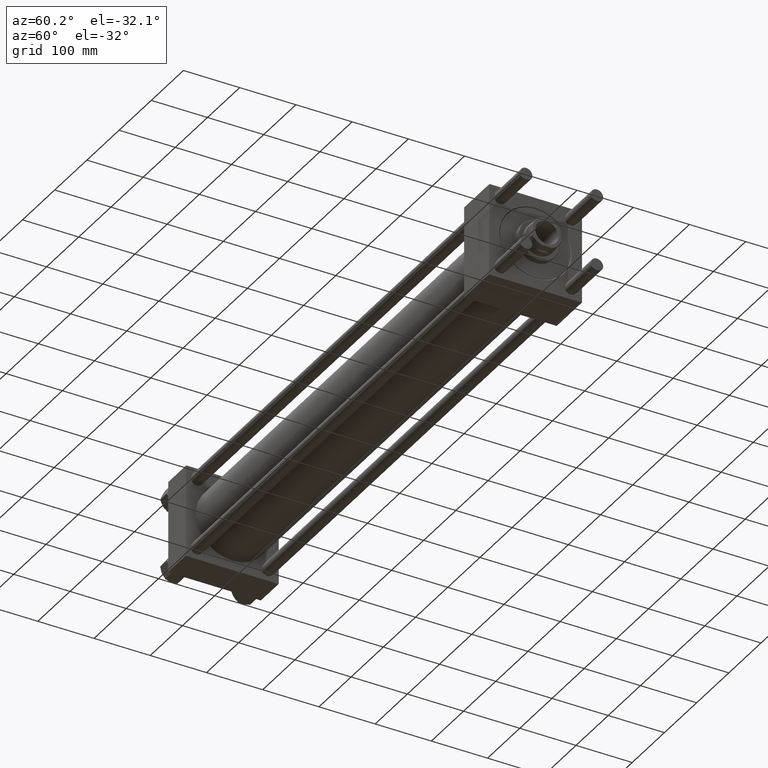
[diagram: clean part render]
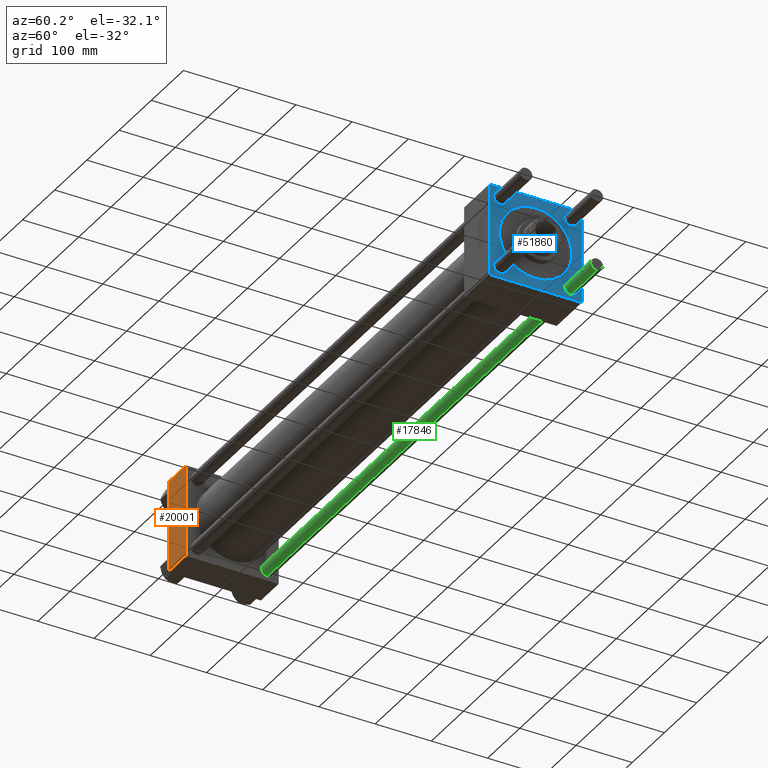
[diagram: same view with three faces highlighted in distinct colors, each labeled with its STEP entity id]
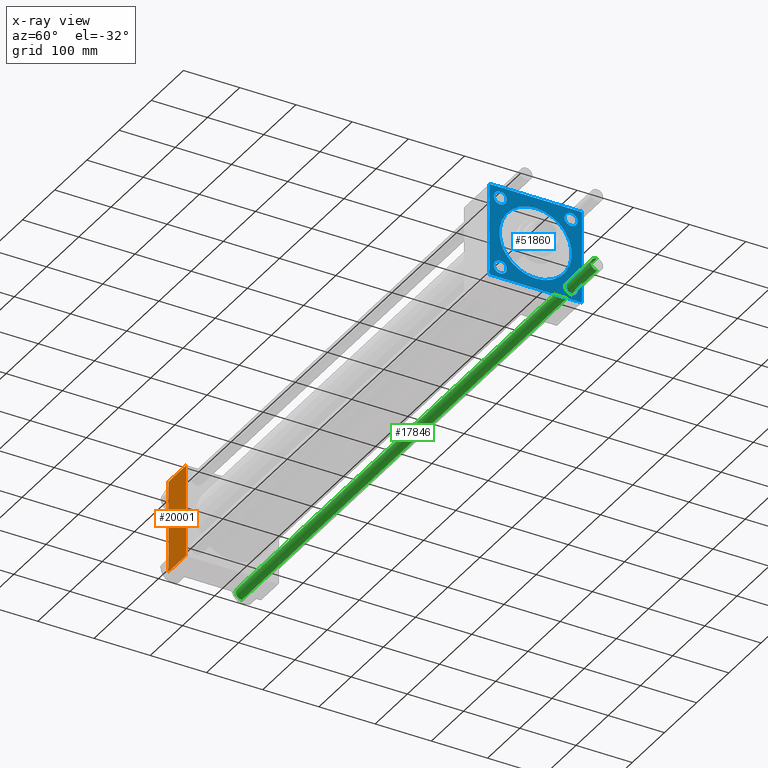
[diagram: x-ray of the same camera — body ghosted, the three highlighted faces saturated]
A machine part, auxiliary view with three faces highlighted in distinct colors.
The next image is the same camera in x-ray (body ghosted, the three faces saturated) — at least one of them is partly hidden behind the body in this view.
Their STEP definitions:

[orange] entity #20001 — the highlighted planar face has unit normal (0, 1, -0).
#1960 = DIRECTION ( 'NONE',  ( 1.000000000000000000, 0.000000000000000000, 0.000000000000000000 ) ) ;
#4855 = VERTEX_POINT ( 'NONE', #13867 ) ;
#5916 = VECTOR ( 'NONE', #13389, 1000.000000000000000 ) ;
#7562 = CARTESIAN_POINT ( 'NONE',  ( 55.00000000000000000, -82.49999999999997158, 82.00000000000001421 ) ) ;
#8442 = EDGE_LOOP ( 'NONE', ( #31862, #13819, #42163, #32578 ) ) ;
#9592 = CARTESIAN_POINT ( 'NONE',  ( 0.000000000000000000, -82.49999999999997158, 82.50000000000001421 ) ) ;
#10832 = VERTEX_POINT ( 'NONE', #33979 ) ;
#13389 = DIRECTION ( 'NONE',  ( 0.000000000000000000, -1.682156097916903588E-16, -1.000000000000000000 ) ) ;
#13819 = ORIENTED_EDGE ( 'NONE', *, *, #26184, .T. ) ;
#13867 = CARTESIAN_POINT ( 'NONE',  ( 0.000000000000000000, -82.50000000000000000, -81.99999999999998579 ) ) ;
#14753 = VERTEX_POINT ( 'NONE', #21691 ) ;
#20001 = ADVANCED_FACE ( 'NONE', ( #33503 ), #51150, .F. ) ;
#20867 = DIRECTION ( 'NONE',  ( -1.000000000000000000, 0.000000000000000000, 0.000000000000000000 ) ) ;
#21691 = CARTESIAN_POINT ( 'NONE',  ( 55.00000000000000000, -82.49999999999997158, 82.00000000000001421 ) ) ;
#23104 = CARTESIAN_POINT ( 'NONE',  ( 55.00000000000000000, -82.50000000000000000, -81.99999999999998579 ) ) ;
#23954 = AXIS2_PLACEMENT_3D ( 'NONE', #47096, #25095, #42466 ) ;
#25095 = DIRECTION ( 'NONE',  ( 0.000000000000000000, 1.000000000000000000, -1.682156097916903588E-16 ) ) ;
#26184 = EDGE_CURVE ( 'NONE', #4855, #35829, #32373, .T. ) ;
#27197 = VECTOR ( 'NONE', #20867, 1000.000000000000000 ) ;
#27816 = VECTOR ( 'NONE', #1960, 1000.000000000000000 ) ;
#31862 = ORIENTED_EDGE ( 'NONE', *, *, #35668, .T. ) ;
#31875 = VECTOR ( 'NONE', #49584, 1000.000000000000000 ) ;
#32231 = CARTESIAN_POINT ( 'NONE',  ( 55.00000000000000000, -82.49999999999997158, 82.50000000000001421 ) ) ;
#32373 = LINE ( 'NONE', #23104, #27816 ) ;
#32578 = ORIENTED_EDGE ( 'NONE', *, *, #41665, .T. ) ;
#33503 = FACE_OUTER_BOUND ( 'NONE', #8442, .T. ) ;
#33979 = CARTESIAN_POINT ( 'NONE',  ( 0.000000000000000000, -82.49999999999997158, 82.00000000000001421 ) ) ;
#35668 = EDGE_CURVE ( 'NONE', #10832, #4855, #49260, .T. ) ;
#35829 = VERTEX_POINT ( 'NONE', #55877 ) ;
#41665 = EDGE_CURVE ( 'NONE', #14753, #10832, #51567, .T. ) ;
#42163 = ORIENTED_EDGE ( 'NONE', *, *, #43733, .F. ) ;
#42466 = DIRECTION ( 'NONE',  ( 0.000000000000000000, 1.682156097916903588E-16, 1.000000000000000000 ) ) ;
#43733 = EDGE_CURVE ( 'NONE', #14753, #35829, #44952, .T. ) ;
#44952 = LINE ( 'NONE', #32231, #31875 ) ;
#47096 = CARTESIAN_POINT ( 'NONE',  ( 55.00000000000000000, -82.49999999999997158, 82.50000000000001421 ) ) ;
#49260 = LINE ( 'NONE', #9592, #5916 ) ;
#49584 = DIRECTION ( 'NONE',  ( 0.000000000000000000, -1.682156097916903588E-16, -1.000000000000000000 ) ) ;
#51150 = PLANE ( 'NONE',  #23954 ) ;
#51567 = LINE ( 'NONE', #7562, #27197 ) ;
#55877 = CARTESIAN_POINT ( 'NONE',  ( 55.00000000000000000, -82.50000000000000000, -81.99999999999998579 ) ) ;

[blue] entity #51860 — the highlighted planar face has unit normal (-1, 0, 0).
#28 = ORIENTED_EDGE ( 'NONE', *, *, #54847, .T. ) ;
#296 = ORIENTED_EDGE ( 'NONE', *, *, #46406, .T. ) ;
#546 = EDGE_CURVE ( 'NONE', #15618, #23925, #17947, .T. ) ;
#549 = CARTESIAN_POINT ( 'NONE',  ( 997.0000000000000000, 0.000000000000000000, -64.25000000000036948 ) ) ;
#681 = EDGE_CURVE ( 'NONE', #3458, #35524, #6850, .T. ) ;
#957 = ORIENTED_EDGE ( 'NONE', *, *, #7726, .T. ) ;
#1243 = VERTEX_POINT ( 'NONE', #549 ) ;
#2039 = EDGE_CURVE ( 'NONE', #39489, #53422, #8329, .T. ) ;
#2057 = DIRECTION ( 'NONE',  ( 0.000000000000000000, 0.000000000000000000, 1.000000000000000000 ) ) ;
#2219 = EDGE_LOOP ( 'NONE', ( #24630, #28721 ) ) ;
#2564 = CARTESIAN_POINT ( 'NONE',  ( 997.0000000000000000, -82.00000000000015632, -82.50000000000002842 ) ) ;
#2662 = DIRECTION ( 'NONE',  ( 0.000000000000000000, 0.000000000000000000, 1.000000000000000000 ) ) ;
#2807 = ORIENTED_EDGE ( 'NONE', *, *, #54905, .F. ) ;
#3228 = CARTESIAN_POINT ( 'NONE',  ( 997.0000000000000000, 0.000000000000000000, 0.000000000000000000 ) ) ;
#3458 = VERTEX_POINT ( 'NONE', #21427 ) ;
#3476 = AXIS2_PLACEMENT_3D ( 'NONE', #38958, #56592, #38093 ) ;
#4945 = CARTESIAN_POINT ( 'NONE',  ( 997.0000000000000000, 81.99999999999995737, 82.50000000000000000 ) ) ;
#6495 = ORIENTED_EDGE ( 'NONE', *, *, #8574, .T. ) ;
#6850 = CIRCLE ( 'NONE', #50289, 11.50000000000028777 ) ;
#6851 = CARTESIAN_POINT ( 'NONE',  ( 997.0000000000000000, -82.49999999999997158, 81.99999999999991473 ) ) ;
#7157 = DIRECTION ( 'NONE',  ( -1.000000000000000000, -0.000000000000000000, 0.000000000000000000 ) ) ;
#7726 = EDGE_CURVE ( 'NONE', #31529, #30227, #55201, .T. ) ;
#7811 = VECTOR ( 'NONE', #43634, 1000.000000000000114 ) ;
#8153 = ORIENTED_EDGE ( 'NONE', *, *, #38608, .T. ) ;
#8250 = VERTEX_POINT ( 'NONE', #56286 ) ;
#8329 = LINE ( 'NONE', #30342, #7811 ) ;
#8574 = EDGE_CURVE ( 'NONE', #23925, #15618, #30268, .T. ) ;
#8809 = DIRECTION ( 'NONE',  ( -1.000000000000000000, -0.000000000000000000, 0.000000000000000000 ) ) ;
#8876 = LINE ( 'NONE', #48827, #17091 ) ;
#8923 = VECTOR ( 'NONE', #19599, 1000.000000000000114 ) ;
#9073 = VERTEX_POINT ( 'NONE', #48475 ) ;
#9912 = ORIENTED_EDGE ( 'NONE', *, *, #2039, .T. ) ;
#9976 = EDGE_CURVE ( 'NONE', #41313, #16746, #19941, .T. ) ;
#11188 = EDGE_LOOP ( 'NONE', ( #31982, #6495 ) ) ;
#11478 = AXIS2_PLACEMENT_3D ( 'NONE', #17638, #21399, #48045 ) ;
#11492 = CARTESIAN_POINT ( 'NONE',  ( 997.0000000000000000, -62.94999999999998153, -62.95000000000001705 ) ) ;
#11799 = EDGE_CURVE ( 'NONE', #35524, #3458, #23712, .T. ) ;
#11879 = PLANE ( 'NONE',  #34918 ) ;
#11980 = CIRCLE ( 'NONE', #56354, 11.50000000000028777 ) ;
#12096 = VECTOR ( 'NONE', #47429, 1000.000000000000000 ) ;
#13123 = DIRECTION ( 'NONE',  ( 0.000000000000000000, 0.000000000000000000, 1.000000000000000000 ) ) ;
#13681 = DIRECTION ( 'NONE',  ( -1.000000000000000000, -0.000000000000000000, 0.000000000000000000 ) ) ;
#15132 = CARTESIAN_POINT ( 'NONE',  ( 997.0000000000000000, -62.94999999999998153, 62.95000000000001705 ) ) ;
#15242 = EDGE_CURVE ( 'NONE', #1243, #31638, #28438, .T. ) ;
#15618 = VERTEX_POINT ( 'NONE', #31818 ) ;
#15634 = DIRECTION ( 'NONE',  ( 0.000000000000000000, 0.000000000000000000, 1.000000000000000000 ) ) ;
#15685 = DIRECTION ( 'NONE',  ( -1.000000000000000000, -0.000000000000000000, 0.000000000000000000 ) ) ;
#15891 = EDGE_CURVE ( 'NONE', #8250, #53422, #46092, .T. ) ;
#15960 = EDGE_LOOP ( 'NONE', ( #51282, #16631, #2807, #9912, #28462, #8153, #42615, #957 ) ) ;
#16510 = FACE_OUTER_BOUND ( 'NONE', #15960, .T. ) ;
#16552 = CARTESIAN_POINT ( 'NONE',  ( 997.0000000000000000, 82.50000000000001421, 82.50000000000000000 ) ) ;
#16631 = ORIENTED_EDGE ( 'NONE', *, *, #55825, .T. ) ;
#16746 = VERTEX_POINT ( 'NONE', #53650 ) ;
#17091 = VECTOR ( 'NONE', #17583, 1000.000000000000114 ) ;
#17280 = AXIS2_PLACEMENT_3D ( 'NONE', #15132, #32809, #54215 ) ;
#17583 = DIRECTION ( 'NONE',  ( 0.000000000000000000, -0.7071067811865474617, 0.7071067811865474617 ) ) ;
#17638 = CARTESIAN_POINT ( 'NONE',  ( 997.0000000000000000, -62.94999999999998153, 62.95000000000001705 ) ) ;
#17947 = CIRCLE ( 'NONE', #11478, 11.50000000000028777 ) ;
#19330 = DIRECTION ( 'NONE',  ( 0.000000000000000000, 0.000000000000000000, 1.000000000000000000 ) ) ;
#19394 = ORIENTED_EDGE ( 'NONE', *, *, #21454, .T. ) ;
#19478 = VERTEX_POINT ( 'NONE', #4945 ) ;
#19485 = CARTESIAN_POINT ( 'NONE',  ( 997.0000000000000000, 82.50000000000001421, -82.50000000000002842 ) ) ;
#19599 = DIRECTION ( 'NONE',  ( -0.000000000000000000, -0.7071067811865573427, -0.7071067811865376918 ) ) ;
#19941 = CIRCLE ( 'NONE', #27486, 11.50000000000028777 ) ;
#20949 = VERTEX_POINT ( 'NONE', #46148 ) ;
#21399 = DIRECTION ( 'NONE',  ( -1.000000000000000000, -0.000000000000000000, 0.000000000000000000 ) ) ;
#21427 = CARTESIAN_POINT ( 'NONE',  ( 997.0000000000000000, -62.94999999999998153, -51.44999999999973284 ) ) ;
#21454 = EDGE_CURVE ( 'NONE', #20949, #54356, #11980, .T. ) ;
#22253 = CARTESIAN_POINT ( 'NONE',  ( 997.0000000000000000, 82.50000000000001421, -81.99999999999997158 ) ) ;
#22414 = DIRECTION ( 'NONE',  ( 0.000000000000000000, 0.000000000000000000, 1.000000000000000000 ) ) ;
#23712 = CIRCLE ( 'NONE', #55113, 11.50000000000028777 ) ;
#23716 = DIRECTION ( 'NONE',  ( 0.000000000000000000, 0.000000000000000000, 1.000000000000000000 ) ) ;
#23925 = VERTEX_POINT ( 'NONE', #30615 ) ;
#24630 = ORIENTED_EDGE ( 'NONE', *, *, #41253, .T. ) ;
#24797 = VECTOR ( 'NONE', #28186, 1000.000000000000000 ) ;
#24888 = DIRECTION ( 'NONE',  ( -1.000000000000000000, -0.000000000000000000, 0.000000000000000000 ) ) ;
#25190 = DIRECTION ( 'NONE',  ( -1.000000000000000000, -0.000000000000000000, 0.000000000000000000 ) ) ;
#26294 = LINE ( 'NONE', #42796, #12096 ) ;
#26827 = CARTESIAN_POINT ( 'NONE',  ( 997.0000000000000000, 62.95000000000000284, 51.44999999999971863 ) ) ;
#27486 = AXIS2_PLACEMENT_3D ( 'NONE', #40361, #31674, #22414 ) ;
#28186 = DIRECTION ( 'NONE',  ( 0.000000000000000000, -1.000000000000000000, 0.000000000000000000 ) ) ;
#28438 = CIRCLE ( 'NONE', #3476, 64.25000000000036948 ) ;
#28462 = ORIENTED_EDGE ( 'NONE', *, *, #15891, .F. ) ;
#28721 = ORIENTED_EDGE ( 'NONE', *, *, #9976, .T. ) ;
#28974 = FACE_BOUND ( 'NONE', #2219, .T. ) ;
#29434 = EDGE_LOOP ( 'NONE', ( #28, #19394 ) ) ;
#29564 = EDGE_CURVE ( 'NONE', #30227, #31008, #26294, .T. ) ;
#30155 = ORIENTED_EDGE ( 'NONE', *, *, #11799, .T. ) ;
#30227 = VERTEX_POINT ( 'NONE', #33565 ) ;
#30268 = CIRCLE ( 'NONE', #17280, 11.50000000000028777 ) ;
#30342 = CARTESIAN_POINT ( 'NONE',  ( 997.0000000000000000, 82.50000000000001421, -81.99999999999997158 ) ) ;
#30550 = EDGE_LOOP ( 'NONE', ( #30155, #33138 ) ) ;
#30615 = CARTESIAN_POINT ( 'NONE',  ( 997.0000000000000000, -62.94999999999998153, 74.45000000000030127 ) ) ;
#30638 = CARTESIAN_POINT ( 'NONE',  ( 997.0000000000000000, 81.99999999999995737, -82.50000000000002842 ) ) ;
#30900 = CIRCLE ( 'NONE', #31788, 11.50000000000028777 ) ;
#31008 = VERTEX_POINT ( 'NONE', #49224 ) ;
#31304 = AXIS2_PLACEMENT_3D ( 'NONE', #48476, #8809, #55081 ) ;
#31529 = VERTEX_POINT ( 'NONE', #51839 ) ;
#31638 = VERTEX_POINT ( 'NONE', #55802 ) ;
#31674 = DIRECTION ( 'NONE',  ( -1.000000000000000000, -0.000000000000000000, 0.000000000000000000 ) ) ;
#31788 = AXIS2_PLACEMENT_3D ( 'NONE', #50347, #41089, #23716 ) ;
#31818 = CARTESIAN_POINT ( 'NONE',  ( 997.0000000000000000, -62.94999999999998153, 51.44999999999973284 ) ) ;
#31982 = ORIENTED_EDGE ( 'NONE', *, *, #546, .T. ) ;
#32809 = DIRECTION ( 'NONE',  ( -1.000000000000000000, -0.000000000000000000, 0.000000000000000000 ) ) ;
#32975 = LINE ( 'NONE', #2564, #39659 ) ;
#33138 = ORIENTED_EDGE ( 'NONE', *, *, #681, .T. ) ;
#33565 = CARTESIAN_POINT ( 'NONE',  ( 997.0000000000000000, -82.49999999999997158, 81.99999999999991473 ) ) ;
#33600 = FACE_BOUND ( 'NONE', #30550, .T. ) ;
#34918 = AXIS2_PLACEMENT_3D ( 'NONE', #51252, #25190, #2057 ) ;
#35524 = VERTEX_POINT ( 'NONE', #48561 ) ;
#35922 = CIRCLE ( 'NONE', #31304, 11.50000000000028777 ) ;
#37330 = LINE ( 'NONE', #54977, #49511 ) ;
#37489 = CIRCLE ( 'NONE', #42114, 64.25000000000036948 ) ;
#37944 = FACE_BOUND ( 'NONE', #47448, .T. ) ;
#38093 = DIRECTION ( 'NONE',  ( 0.000000000000000000, 0.000000000000000000, 1.000000000000000000 ) ) ;
#38608 = EDGE_CURVE ( 'NONE', #8250, #19478, #8876, .T. ) ;
#38958 = CARTESIAN_POINT ( 'NONE',  ( 997.0000000000000000, 0.000000000000000000, 0.000000000000000000 ) ) ;
#39489 = VERTEX_POINT ( 'NONE', #30638 ) ;
#39659 = VECTOR ( 'NONE', #46551, 1000.000000000000000 ) ;
#40361 = CARTESIAN_POINT ( 'NONE',  ( 997.0000000000000000, 62.95000000000000284, -62.95000000000000284 ) ) ;
#41089 = DIRECTION ( 'NONE',  ( -1.000000000000000000, -0.000000000000000000, 0.000000000000000000 ) ) ;
#41253 = EDGE_CURVE ( 'NONE', #16746, #41313, #30900, .T. ) ;
#41313 = VERTEX_POINT ( 'NONE', #46854 ) ;
#42114 = AXIS2_PLACEMENT_3D ( 'NONE', #3228, #15685, #2662 ) ;
#42615 = ORIENTED_EDGE ( 'NONE', *, *, #46533, .T. ) ;
#42796 = CARTESIAN_POINT ( 'NONE',  ( 997.0000000000000000, -82.49999999999997158, 82.49999999999997158 ) ) ;
#43634 = DIRECTION ( 'NONE',  ( -0.000000000000000000, 0.7071067811865474617, 0.7071067811865474617 ) ) ;
#45070 = VECTOR ( 'NONE', #48380, 1000.000000000000000 ) ;
#45231 = ORIENTED_EDGE ( 'NONE', *, *, #15242, .T. ) ;
#45723 = DIRECTION ( 'NONE',  ( 0.000000000000000000, -1.000000000000000000, -1.682156097916904081E-16 ) ) ;
#46092 = LINE ( 'NONE', #16552, #45070 ) ;
#46148 = CARTESIAN_POINT ( 'NONE',  ( 997.0000000000000000, 62.95000000000000284, 74.45000000000028706 ) ) ;
#46406 = EDGE_CURVE ( 'NONE', #31638, #1243, #37489, .T. ) ;
#46533 = EDGE_CURVE ( 'NONE', #19478, #31529, #37330, .T. ) ;
#46551 = DIRECTION ( 'NONE',  ( 0.000000000000000000, 0.7071067811864788499, -0.7071067811866161845 ) ) ;
#46612 = FACE_BOUND ( 'NONE', #11188, .T. ) ;
#46854 = CARTESIAN_POINT ( 'NONE',  ( 997.0000000000000000, 62.95000000000000284, -51.44999999999971863 ) ) ;
#47429 = DIRECTION ( 'NONE',  ( 0.000000000000000000, -1.682156097916903834E-16, -1.000000000000000000 ) ) ;
#47448 = EDGE_LOOP ( 'NONE', ( #45231, #296 ) ) ;
#48045 = DIRECTION ( 'NONE',  ( 0.000000000000000000, 0.000000000000000000, 1.000000000000000000 ) ) ;
#48380 = DIRECTION ( 'NONE',  ( 0.000000000000000000, 0.000000000000000000, -1.000000000000000000 ) ) ;
#48475 = CARTESIAN_POINT ( 'NONE',  ( 997.0000000000000000, -82.00000000000015632, -82.50000000000002842 ) ) ;
#48476 = CARTESIAN_POINT ( 'NONE',  ( 997.0000000000000000, 62.95000000000000284, 62.95000000000000284 ) ) ;
#48561 = CARTESIAN_POINT ( 'NONE',  ( 997.0000000000000000, -62.94999999999998153, -74.45000000000030127 ) ) ;
#48827 = CARTESIAN_POINT ( 'NONE',  ( 997.0000000000000000, 81.99999999999995737, 82.50000000000000000 ) ) ;
#49224 = CARTESIAN_POINT ( 'NONE',  ( 997.0000000000000000, -82.50000000000000000, -82.00000000000008527 ) ) ;
#49511 = VECTOR ( 'NONE', #45723, 1000.000000000000000 ) ;
#50289 = AXIS2_PLACEMENT_3D ( 'NONE', #11492, #7157, #19330 ) ;
#50347 = CARTESIAN_POINT ( 'NONE',  ( 997.0000000000000000, 62.95000000000000284, -62.95000000000000284 ) ) ;
#50748 = LINE ( 'NONE', #19485, #24797 ) ;
#51252 = CARTESIAN_POINT ( 'NONE',  ( 997.0000000000000000, 0.000000000000000000, 0.000000000000000000 ) ) ;
#51282 = ORIENTED_EDGE ( 'NONE', *, *, #29564, .T. ) ;
#51544 = FACE_BOUND ( 'NONE', #29434, .T. ) ;
#51812 = CARTESIAN_POINT ( 'NONE',  ( 997.0000000000000000, 62.95000000000000284, 62.95000000000000284 ) ) ;
#51839 = CARTESIAN_POINT ( 'NONE',  ( 997.0000000000000000, -81.99999999999990052, 82.49999999999997158 ) ) ;
#51860 = ADVANCED_FACE ( 'NONE', ( #33600, #28974, #51544, #46612, #37944, #16510 ), #11879, .F. ) ;
#53342 = CARTESIAN_POINT ( 'NONE',  ( 997.0000000000000000, -62.94999999999998153, -62.95000000000001705 ) ) ;
#53422 = VERTEX_POINT ( 'NONE', #22253 ) ;
#53650 = CARTESIAN_POINT ( 'NONE',  ( 997.0000000000000000, 62.95000000000000284, -74.45000000000028706 ) ) ;
#54215 = DIRECTION ( 'NONE',  ( 0.000000000000000000, 0.000000000000000000, 1.000000000000000000 ) ) ;
#54356 = VERTEX_POINT ( 'NONE', #26827 ) ;
#54847 = EDGE_CURVE ( 'NONE', #54356, #20949, #35922, .T. ) ;
#54905 = EDGE_CURVE ( 'NONE', #39489, #9073, #50748, .T. ) ;
#54977 = CARTESIAN_POINT ( 'NONE',  ( 997.0000000000000000, 82.50000000000001421, 82.50000000000000000 ) ) ;
#55081 = DIRECTION ( 'NONE',  ( 0.000000000000000000, 0.000000000000000000, 1.000000000000000000 ) ) ;
#55113 = AXIS2_PLACEMENT_3D ( 'NONE', #53342, #13681, #13123 ) ;
#55201 = LINE ( 'NONE', #6851, #8923 ) ;
#55802 = CARTESIAN_POINT ( 'NONE',  ( 997.0000000000000000, 7.868355684521788489E-15, 64.25000000000036948 ) ) ;
#55825 = EDGE_CURVE ( 'NONE', #31008, #9073, #32975, .T. ) ;
#56286 = CARTESIAN_POINT ( 'NONE',  ( 997.0000000000000000, 82.50000000000001421, 81.99999999999994316 ) ) ;
#56354 = AXIS2_PLACEMENT_3D ( 'NONE', #51812, #24888, #15634 ) ;
#56592 = DIRECTION ( 'NONE',  ( -1.000000000000000000, -0.000000000000000000, 0.000000000000000000 ) ) ;

[green] entity #17846 — the highlighted cylindrical surface (edge-blend (fillet) strip) has radius 11 mm, axis along (-1, -0, 0).
#1088 = DIRECTION ( 'NONE',  ( 1.000000000000000000, 0.000000000000000000, 0.000000000000000000 ) ) ;
#1654 = EDGE_CURVE ( 'NONE', #14965, #31231, #24763, .T. ) ;
#2330 = EDGE_CURVE ( 'NONE', #23510, #26947, #8227, .T. ) ;
#2770 = DIRECTION ( 'NONE',  ( -0.000000000000000000, -0.000000000000000000, -1.000000000000000000 ) ) ;
#7931 = CARTESIAN_POINT ( 'NONE',  ( 11.00000000000000000, 1.347111479062088405E-15, 1104.000000000000000 ) ) ;
#8146 = CIRCLE ( 'NONE', #19213, 11.00000000000000000 ) ;
#8227 = LINE ( 'NONE', #7931, #31868 ) ;
#8510 = ORIENTED_EDGE ( 'NONE', *, *, #1654, .T. ) ;
#8560 = ORIENTED_EDGE ( 'NONE', *, *, #57278, .T. ) ;
#12734 = FACE_OUTER_BOUND ( 'NONE', #28087, .T. ) ;
#13304 = CARTESIAN_POINT ( 'NONE',  ( 0.000000000000000000, 0.000000000000000000, 1104.000000000000000 ) ) ;
#14312 = DIRECTION ( 'NONE',  ( 1.000000000000000000, 0.000000000000000000, 0.000000000000000000 ) ) ;
#14965 = VERTEX_POINT ( 'NONE', #37286 ) ;
#17074 = CYLINDRICAL_SURFACE ( 'NONE', #43263, 11.00000000000000000 ) ;
#17846 = ADVANCED_FACE ( 'NONE', ( #12734 ), #17074, .T. ) ;
#19213 = AXIS2_PLACEMENT_3D ( 'NONE', #40748, #32069, #1088 ) ;
#19565 = CARTESIAN_POINT ( 'NONE',  ( 11.00000000000000000, 1.347111479062088405E-15, 1103.500000000000455 ) ) ;
#22057 = CARTESIAN_POINT ( 'NONE',  ( 11.00000000000000000, 1.347111479062088405E-15, 0.5000000000001669775 ) ) ;
#22561 = VECTOR ( 'NONE', #2770, 1000.000000000000000 ) ;
#23510 = VERTEX_POINT ( 'NONE', #19565 ) ;
#23843 = AXIS2_PLACEMENT_3D ( 'NONE', #53133, #49629, #14312 ) ;
#24763 = LINE ( 'NONE', #42421, #22561 ) ;
#26947 = VERTEX_POINT ( 'NONE', #22057 ) ;
#28087 = EDGE_LOOP ( 'NONE', ( #33928, #8560, #8510, #41886 ) ) ;
#30974 = DIRECTION ( 'NONE',  ( -0.000000000000000000, -0.000000000000000000, -1.000000000000000000 ) ) ;
#31231 = VERTEX_POINT ( 'NONE', #37340 ) ;
#31868 = VECTOR ( 'NONE', #44111, 1000.000000000000000 ) ;
#32069 = DIRECTION ( 'NONE',  ( -0.000000000000000000, -0.000000000000000000, 1.000000000000000000 ) ) ;
#33928 = ORIENTED_EDGE ( 'NONE', *, *, #2330, .F. ) ;
#37286 = CARTESIAN_POINT ( 'NONE',  ( -11.00000000000000000, 0.000000000000000000, 1103.500000000000455 ) ) ;
#37340 = CARTESIAN_POINT ( 'NONE',  ( -11.00000000000000000, 0.000000000000000000, 0.5000000000001669775 ) ) ;
#40748 = CARTESIAN_POINT ( 'NONE',  ( 0.000000000000000000, 0.000000000000000000, 0.5000000000001669775 ) ) ;
#41886 = ORIENTED_EDGE ( 'NONE', *, *, #52719, .T. ) ;
#42421 = CARTESIAN_POINT ( 'NONE',  ( -11.00000000000000000, 0.000000000000000000, 1104.000000000000000 ) ) ;
#43263 = AXIS2_PLACEMENT_3D ( 'NONE', #13304, #30974, #56152 ) ;
#44111 = DIRECTION ( 'NONE',  ( -0.000000000000000000, -0.000000000000000000, -1.000000000000000000 ) ) ;
#49629 = DIRECTION ( 'NONE',  ( 0.000000000000000000, 0.000000000000000000, -1.000000000000000000 ) ) ;
#51580 = CIRCLE ( 'NONE', #23843, 11.00000000000000000 ) ;
#52719 = EDGE_CURVE ( 'NONE', #31231, #26947, #8146, .T. ) ;
#53133 = CARTESIAN_POINT ( 'NONE',  ( 0.000000000000000000, 0.000000000000000000, 1103.500000000000455 ) ) ;
#56152 = DIRECTION ( 'NONE',  ( -1.000000000000000000, 0.000000000000000000, 0.000000000000000000 ) ) ;
#57278 = EDGE_CURVE ( 'NONE', #23510, #14965, #51580, .T. ) ;